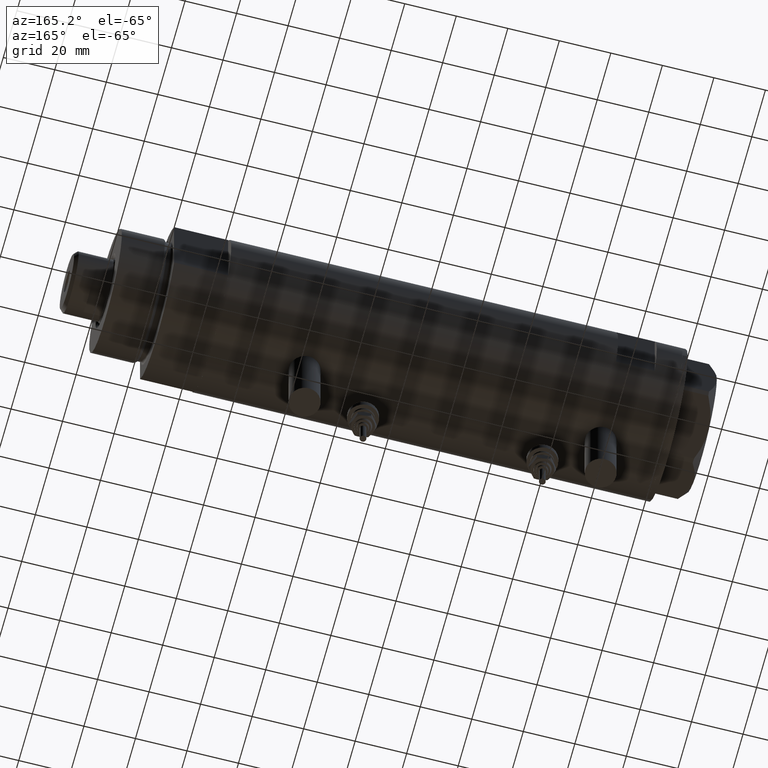
[diagram: clean part render]
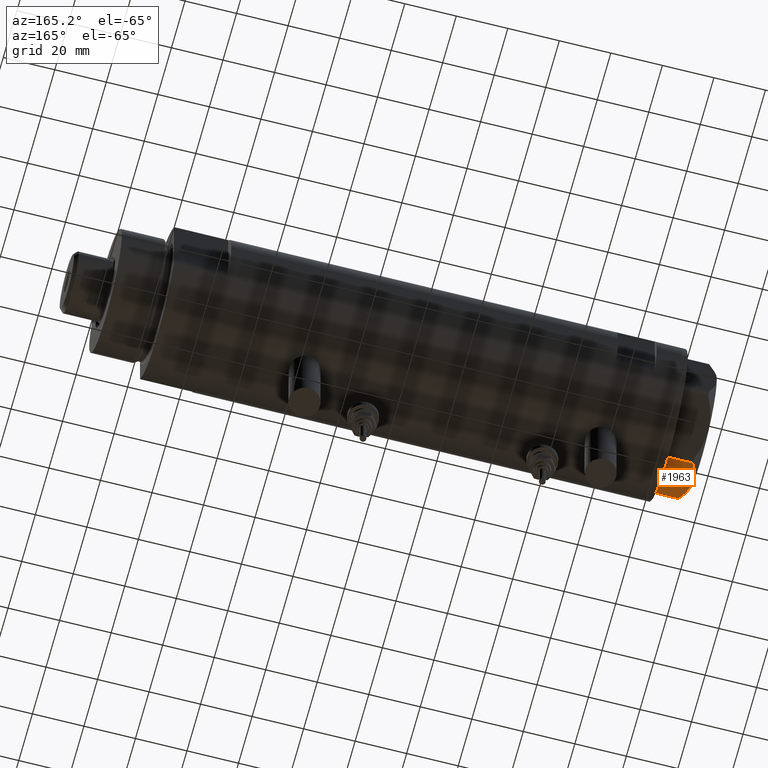
[diagram: same view with one face highlighted and labeled with its STEP entity id]
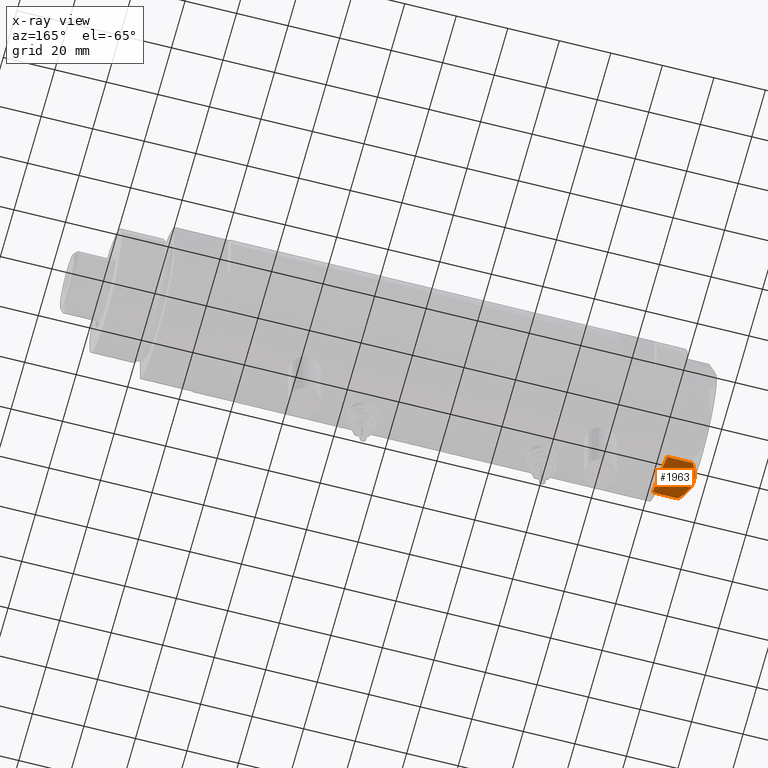
[diagram: x-ray of the same camera — body ghosted, the highlighted face saturated]
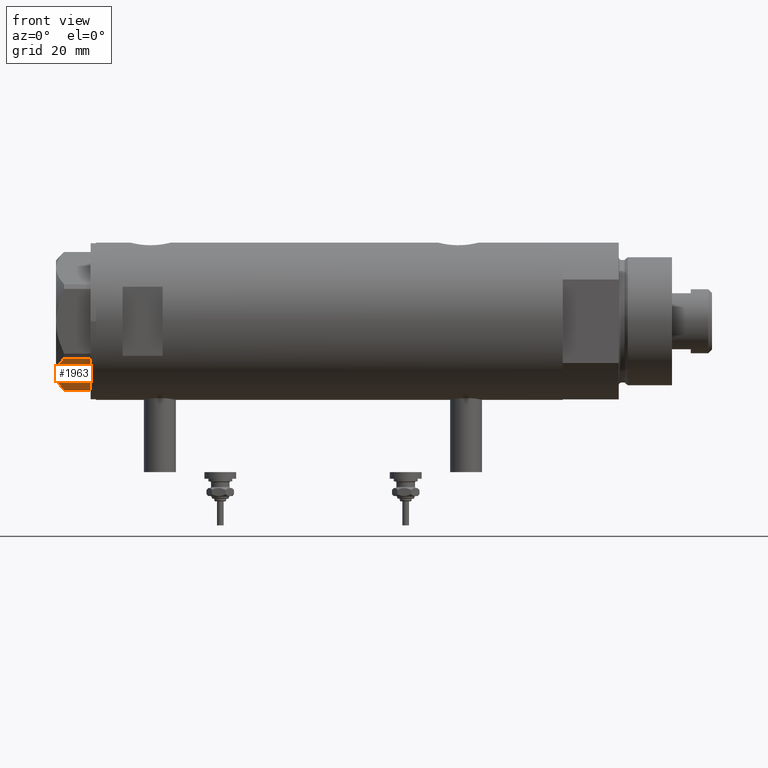
[diagram: same view with one face highlighted and labeled with its STEP entity id]
A machine part, auxiliary view. The second image highlights one B-rep face of the part: STEP entity #1963.
The next image is the same camera in x-ray: the body ghosted, the highlighted face saturated — about 0% of this face is hidden behind the body in this view.
A second angle (front view) of the same face is appended — the face is thin or edge-on in the first view.
In plain terms, the highlighted planar face has unit normal (0, 0.5, 0.866).
Its self-contained STEP definition (entity closure, byte-faithful):
#79 = B_SPLINE_CURVE_WITH_KNOTS ( 'NONE', 3,
 ( #1592, #5297, #3420, #4797, #1104, #5263, #2934, #1164, #3031, #257 ),
 .UNSPECIFIED., .F., .F.,
 ( 4, 2, 2, 2, 4 ),
 ( 0.01376519981810312397, 0.01998941321701587850, 0.02154546656674406757, 0.02310151991647225664, 0.02621362661592864171 ),
 .UNSPECIFIED. ) ;
#144 = VERTEX_POINT ( 'NONE', #4094 ) ;
#167 = ORIENTED_EDGE ( 'NONE', *, *, #4016, .F. ) ;
#257 = CARTESIAN_POINT ( 'NONE',  ( -22.03005154776142760, 13.83905619136132259, 9.983800287807632401 ) ) ;
#301 = VERTEX_POINT ( 'NONE', #5194 ) ;
#338 = EDGE_CURVE ( 'NONE', #1317, #301, #2094, .T. ) ;
#468 = LINE ( 'NONE', #4193, #871 ) ;
#543 = CARTESIAN_POINT ( 'NONE',  ( -9.197898616902921987, 21.24770314027493612, 12.85271263895580596 ) ) ;
#558 = CARTESIAN_POINT ( 'NONE',  ( -11.50000000000004441, 19.91858428704211548, 13.00000000000000000 ) ) ;
#653 = EDGE_CURVE ( 'NONE', #3334, #301, #79, .T. ) ;
#871 = VECTOR ( 'NONE', #4737, 1000.000000000000227 ) ;
#907 = ORIENTED_EDGE ( 'NONE', *, *, #338, .T. ) ;
#990 = CARTESIAN_POINT ( 'NONE',  ( -0.9699484522384476115, 25.99811238272281599, 9.983800287807556018 ) ) ;
#1095 = DIRECTION ( 'NONE',  ( 0.000000000000000000, 0.000000000000000000, -1.000000000000000000 ) ) ;
#1104 = CARTESIAN_POINT ( 'NONE',  ( -17.77001848220189828, 16.29858742851882525, 11.89212886775844424 ) ) ;
#1164 = CARTESIAN_POINT ( 'NONE',  ( -20.35958612119325650, 14.80349985506242838, 10.84420102443839085 ) ) ;
#1317 = VERTEX_POINT ( 'NONE', #1816 ) ;
#1481 = CARTESIAN_POINT ( 'NONE',  ( -10.58093321976963175, 20.44920774001128194, 12.98168640760950510 ) ) ;
#1551 = LINE ( 'NONE', #5188, #1722 ) ;
#1592 = CARTESIAN_POINT ( 'NONE',  ( -11.50000000000004441, 19.91858428704211548, 13.00000000000000000 ) ) ;
#1722 = VECTOR ( 'NONE', #1095, 1000.000000000000000 ) ;
#1816 = CARTESIAN_POINT ( 'NONE',  ( -22.03005154776141339, 13.83905619136132792, 0.000000000000000000 ) ) ;
#1963 = ADVANCED_FACE ( 'NONE', ( #3197 ), #5871, .F. ) ;
#1987 = EDGE_LOOP ( 'NONE', ( #3423, #907, #3130, #167, #5914 ) ) ;
#2094 = LINE ( 'NONE', #2125, #3162 ) ;
#2125 = CARTESIAN_POINT ( 'NONE',  ( -22.03005154776142049, 13.83905619136132614, 13.00000000000000000 ) ) ;
#2329 = CARTESIAN_POINT ( 'NONE',  ( -2.626494320835643048, 25.04170517956326236, 10.87778242614345814 ) ) ;
#2408 = EDGE_CURVE ( 'NONE', #4498, #144, #1551, .T. ) ;
#2518 = CARTESIAN_POINT ( 'NONE',  ( -0.9699484522384476115, 25.99811238272281599, 9.983800287807556018 ) ) ;
#2835 = CARTESIAN_POINT ( 'NONE',  ( -7.836767740116584058, 22.03355241838984924, 12.63731396715694899 ) ) ;
#2934 = CARTESIAN_POINT ( 'NONE',  ( -19.07486218896993790, 15.54523556316591915, 11.39727285399141898 ) ) ;
#3031 = CARTESIAN_POINT ( 'NONE',  ( -21.20080365460317751, 14.31782268570117367, 10.43131750950939818 ) ) ;
#3130 = ORIENTED_EDGE ( 'NONE', *, *, #653, .F. ) ;
#3162 = VECTOR ( 'NONE', #5317, 1000.000000000000000 ) ;
#3197 = FACE_OUTER_BOUND ( 'NONE', #1987, .T. ) ;
#3334 = VERTEX_POINT ( 'NONE', #558 ) ;
#3420 = CARTESIAN_POINT ( 'NONE',  ( -15.11535457301031649, 17.83125835109857249, 12.70765172847700519 ) ) ;
#3423 = ORIENTED_EDGE ( 'NONE', *, *, #4409, .T. ) ;
#3606 = CARTESIAN_POINT ( 'NONE',  ( 0.000000000000000000, 26.55811238272274366, 13.00000000000000000 ) ) ;
#3735 = CARTESIAN_POINT ( 'NONE',  ( -6.946777556903628970, 22.54738849024396075, 12.42689993760377831 ) ) ;
#4016 = EDGE_CURVE ( 'NONE', #4498, #3334, #5848, .T. ) ;
#4094 = CARTESIAN_POINT ( 'NONE',  ( -0.9699484522385893870, 25.99811238272273073, 0.000000000000000000 ) ) ;
#4193 = CARTESIAN_POINT ( 'NONE',  ( 0.000000000000000000, 26.55811238272274366, 0.000000000000000000 ) ) ;
#4409 = EDGE_CURVE ( 'NONE', #144, #1317, #468, .T. ) ;
#4498 = VERTEX_POINT ( 'NONE', #2518 ) ;
#4524 = DIRECTION ( 'NONE',  ( 0.8660254037844381525, 0.5000000000000008882, 0.000000000000000000 ) ) ;
#4635 = CARTESIAN_POINT ( 'NONE',  ( -11.50000000000004441, 19.91858428704211548, 13.00000000000000000 ) ) ;
#4660 = CARTESIAN_POINT ( 'NONE',  ( -11.04134848610939557, 20.18338686205100885, 13.00000000000010125 ) ) ;
#4737 = DIRECTION ( 'NONE',  ( -0.8660254037844380415, -0.5000000000000008882, 0.000000000000000000 ) ) ;
#4797 = CARTESIAN_POINT ( 'NONE',  ( -17.32831362639716843, 16.55360584592005679, 12.04068176582934235 ) ) ;
#5026 = CARTESIAN_POINT ( 'NONE',  ( -9.656518383329851574, 20.98291889467267879, 12.90784227772844162 ) ) ;
#5188 = CARTESIAN_POINT ( 'NONE',  ( -0.9699484522385897201, 25.99811238272273073, 13.00000000000000000 ) ) ;
#5194 = CARTESIAN_POINT ( 'NONE',  ( -22.03005154776142760, 13.83905619136132259, 9.983800287807632401 ) ) ;
#5263 = CARTESIAN_POINT ( 'NONE',  ( -18.64279229058393739, 15.79469123530780372, 11.57055225522972286 ) ) ;
#5297 = CARTESIAN_POINT ( 'NONE',  ( -13.32175508098984018, 18.86679350063497296, 13.00000000000009237 ) ) ;
#5317 = DIRECTION ( 'NONE',  ( 0.000000000000000000, 0.000000000000000000, 1.000000000000000000 ) ) ;
#5417 = DIRECTION ( 'NONE',  ( 0.5000000000000008882, -0.8660254037844381525, 0.000000000000000000 ) ) ;
#5529 = CARTESIAN_POINT ( 'NONE',  ( -4.320186229909891651, 24.06385169993495055, 11.62937486882611005 ) ) ;
#5818 = AXIS2_PLACEMENT_3D ( 'NONE', #3606, #5417, #4524 ) ;
#5848 = B_SPLINE_CURVE_WITH_KNOTS ( 'NONE', 3,
 ( #990, #2329, #5529, #3735, #2835, #543, #5026, #1481, #4660, #4635 ),
 .UNSPECIFIED., .F., .F.,
 ( 4, 2, 2, 2, 4 ),
 ( 0.001228959670438532553, 0.007497079744270828371, 0.01063113978118697921, 0.01219816979964505159, 0.01376519981810312397 ),
 .UNSPECIFIED. ) ;
#5871 = PLANE ( 'NONE',  #5818 ) ;
#5914 = ORIENTED_EDGE ( 'NONE', *, *, #2408, .T. ) ;